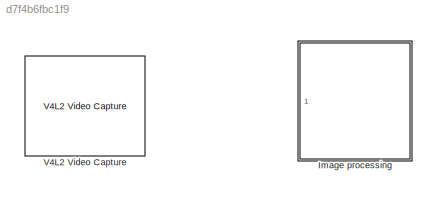
MODEL slx_d7f4b6fbc1f9
KIND model
CONFIG AbsTol = auto
CONFIG EnableMultiTasking = off
CONFIG FixedStep = auto
CONFIG MaxStep = auto
CONFIG MinStep = auto
CONFIG RelTol = 1e-3
CONFIG SampleTimeConstraint = Unconstrained
CONFIG Solver = FixedStepAuto
CONFIG SolverName = FixedStepAuto
CONFIG StartTime = 0.0
CONFIG StopTime = 10.0
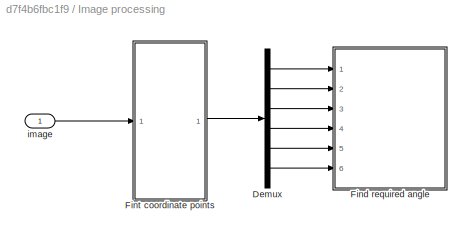
BLOCK [SubSystem] Image processing
  Ports = [1]
  RequestExecContextInheritance = off
  Variant = off
BLOCK [Demux] Image processing/Demux
  DisplayOption = bar
  Outputs = 6
  Ports = [1, 6]
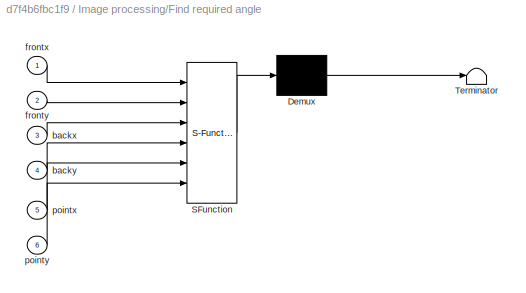
BLOCK [SubSystem] Image processing/Find required angle
  ErrorFcn = Stateflow.Translate.translate
  PermitHierarchicalResolution = ExplicitOnly
  Ports = [6]
  RequestExecContextInheritance = off
  SFBlockType = MATLAB Function
  TreatAsAtomicUnit = on
  Variant = off
BLOCK [Demux] Image processing/Find required angle/ Demux 
  Outputs = 1
  Ports = [1, 1]
BLOCK [S-Function] Image processing/Find required angle/ SFunction 
  EnableBusSupport = on
  FunctionName = sf_sfun
  PortCounts = [6 1]
  Ports = [6, 1]
  SFcnIsStateOwnerBlock = off
  SFunctionDeploymentMode = off
  Tag = Stateflow S-Function rasberry 2
BLOCK [Terminator] Image processing/Find required angle/ Terminator 
BLOCK [Inport] Image processing/Find required angle/backx
  IconDisplay = Port number
  Port = 3
BLOCK [Inport] Image processing/Find required angle/backy
  IconDisplay = Port number
  Port = 4
BLOCK [Inport] Image processing/Find required angle/frontx
  IconDisplay = Port number
BLOCK [Inport] Image processing/Find required angle/fronty
  IconDisplay = Port number
  Port = 2
BLOCK [Inport] Image processing/Find required angle/pointx
  IconDisplay = Port number
  Port = 5
BLOCK [Inport] Image processing/Find required angle/pointy
  IconDisplay = Port number
  Port = 6
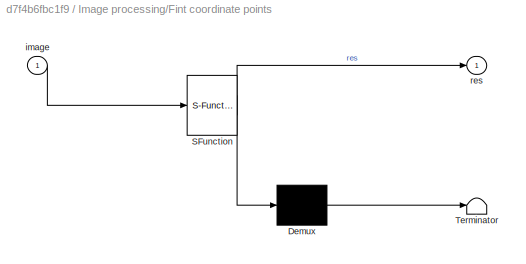
BLOCK [SubSystem] Image processing/Fint coordinate points
  ErrorFcn = Stateflow.Translate.translate
  PermitHierarchicalResolution = ExplicitOnly
  Ports = [1, 1]
  RequestExecContextInheritance = off
  SFBlockType = MATLAB Function
  TreatAsAtomicUnit = on
  Variant = off
BLOCK [Demux] Image processing/Fint coordinate points/ Demux 
  Outputs = 1
  Ports = [1, 1]
BLOCK [S-Function] Image processing/Fint coordinate points/ SFunction 
  EnableBusSupport = on
  FunctionName = sf_sfun
  PortCounts = [1 2]
  Ports = [1, 2]
  SFcnIsStateOwnerBlock = off
  SFunctionDeploymentMode = off
  Tag = Stateflow S-Function rasberry 1
BLOCK [Terminator] Image processing/Fint coordinate points/ Terminator 
BLOCK [Inport] Image processing/Fint coordinate points/image
  IconDisplay = Port number
BLOCK [Outport] Image processing/Fint coordinate points/res
  IconDisplay = Port number
BLOCK [Inport] Image processing/image 
  IconDisplay = Port number
BLOCK [Reference] V4L2 Video Capture  REF=embdlinuxlib/V4L2 Video Capture
  Ports = [0, 3]
  SourceBlock = embdlinuxlib/V4L2 Video Capture
  SourceType = V4L2 Video Capture
LINE Image processing/Demux:1 -> Image processing/Find required angle:1
LINE Image processing/Demux:2 -> Image processing/Find required angle:2
LINE Image processing/Demux:3 -> Image processing/Find required angle:3
LINE Image processing/Demux:4 -> Image processing/Find required angle:4
LINE Image processing/Demux:5 -> Image processing/Find required angle:5
LINE Image processing/Demux:6 -> Image processing/Find required angle:6
LINE Image processing/Fint coordinate points:1 -> Image processing/Demux:1
LINE Image processing/image :1 -> Image processing/Fint coordinate points:1
CHART Image processing/Fint coordinate points states=1 transitions=1
  STATE_LABEL 'eML_blk_kernel()'
  STATE_LABEL "SCRIPT:\nfunction res = findColor( image)\n\nresizeIm = 0.1;\n\n%image = ('double1.jpg');\nimage = imread(image);\nimage = imresize(image,resizeIm);\n[m,n] = size(image);\n\nred = image(:,:,1);\nblue = image(:,:,3);\ngreen = image - red;\ngreenIntensity = rgb2gray(green);\ngreenBinary = imbinarize(greenIntensity);\ns = regionprops(greenBinary,'centroid');\ncentroids = cat(1, s.Centroid);\na = regionprops(greenBina...<+598ch>"
CHART Image processing/Find 
required angle states=1 transitions=1
  STATE_LABEL 'eML_blk_kernel()'
  STATE_LABEL 'SCRIPT:\nfunction findAngle(frontx, fronty, backx, backy, pointx, pointy)\n\n%%setting the coordinates for the middle of the car \nif frontx < backx\n    carx = frontx + abs(backx - frontx)/2; \nelse\n    carx = backx + abs(backx - frontx)/2; \nend\n\nif fronty < backy\n    cary = fronty + abs(backy - fronty)/2; \nelse\n    cary = backy + abs(backy - fronty)/2;  \nend\n\n\n%%finding the vector between car and dest...<+335ch>'
